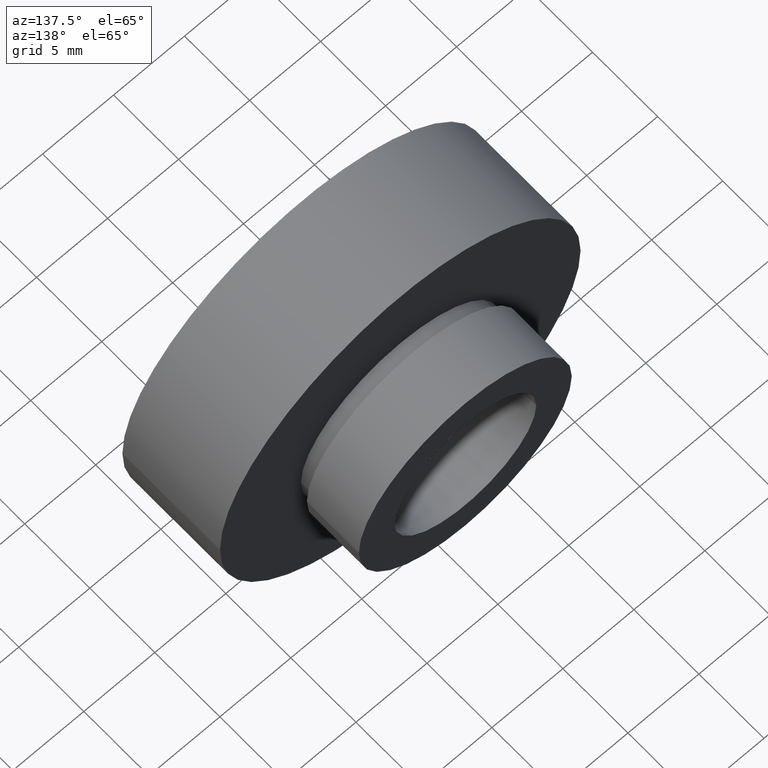
[diagram: clean part render]
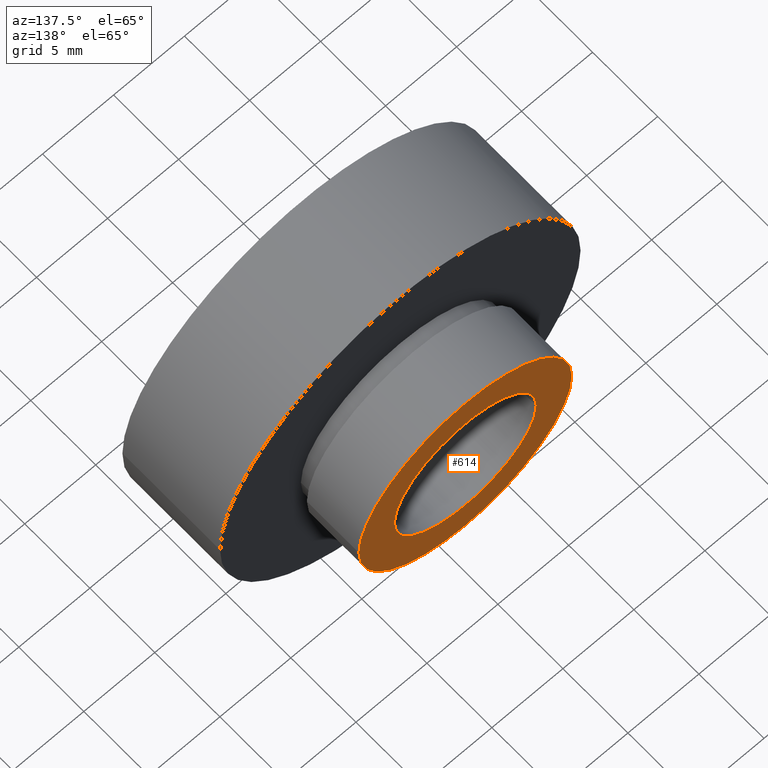
[diagram: same view with one face highlighted and labeled with its STEP entity id]
A machine part, auxiliary view. The second image highlights one B-rep face of the part: STEP entity #614.
In plain terms, the highlighted planar face has unit normal (0, -1, 0).
Its self-contained STEP definition (entity closure, byte-faithful):
#25 = PLANE ( 'NONE',  #171 ) ;
#27 = ORIENTED_EDGE ( 'NONE', *, *, #395, .T. ) ;
#40 = ORIENTED_EDGE ( 'NONE', *, *, #592, .F. ) ;
#53 = CIRCLE ( 'NONE', #141, 7.500000000000000000 ) ;
#56 = CARTESIAN_POINT ( 'NONE',  ( -5.000000000000000000, 12.50000000000000000, 0.0000000000000000000 ) ) ;
#58 = DIRECTION ( 'NONE',  ( -1.000000000000000000, -2.312964634635743000E-016, 0.0000000000000000000 ) ) ;
#82 = CARTESIAN_POINT ( 'NONE',  ( 7.500000000000000900, 12.49999999999999800, 9.184850993605147900E-016 ) ) ;
#85 = ORIENTED_EDGE ( 'NONE', *, *, #605, .T. ) ;
#91 = EDGE_LOOP ( 'NONE', ( #135, #40 ) ) ;
#112 = CARTESIAN_POINT ( 'NONE',  ( 5.371323195044471300E-016, 12.50000000000000000, 0.0000000000000000000 ) ) ;
#135 = ORIENTED_EDGE ( 'NONE', *, *, #612, .F. ) ;
#140 = DIRECTION ( 'NONE',  ( -1.000000000000000000, -2.312964634635743000E-016, 0.0000000000000000000 ) ) ;
#141 = AXIS2_PLACEMENT_3D ( 'NONE', #288, #259, #140 ) ;
#147 = DIRECTION ( 'NONE',  ( -1.224646799147351000E-016, 1.000000000000000000, -0.0000000000000000000 ) ) ;
#171 = AXIS2_PLACEMENT_3D ( 'NONE', #219, #268, #493 ) ;
#186 = VERTEX_POINT ( 'NONE', #56 ) ;
#200 = VERTEX_POINT ( 'NONE', #486 ) ;
#219 = CARTESIAN_POINT ( 'NONE',  ( 5.000000000000001800, 12.50000000000000000, 0.0000000000000000000 ) ) ;
#237 = FACE_OUTER_BOUND ( 'NONE', #386, .T. ) ;
#244 = AXIS2_PLACEMENT_3D ( 'NONE', #112, #147, #277 ) ;
#259 = DIRECTION ( 'NONE',  ( -1.224646799147351000E-016, 1.000000000000000000, -0.0000000000000000000 ) ) ;
#265 = AXIS2_PLACEMENT_3D ( 'NONE', #438, #620, #58 ) ;
#266 = VERTEX_POINT ( 'NONE', #82 ) ;
#268 = DIRECTION ( 'NONE',  ( 1.224646799147351000E-016, -1.000000000000000000, 0.0000000000000000000 ) ) ;
#277 = DIRECTION ( 'NONE',  ( -1.000000000000000000, 0.0000000000000000000, 0.0000000000000000000 ) ) ;
#288 = CARTESIAN_POINT ( 'NONE',  ( 5.371323195044473300E-016, 12.49999999999999600, 0.0000000000000000000 ) ) ;
#293 = CARTESIAN_POINT ( 'NONE',  ( 5.371323195044471300E-016, 12.50000000000000000, 0.0000000000000000000 ) ) ;
#353 = DIRECTION ( 'NONE',  ( -1.224646799147351000E-016, 1.000000000000000000, -0.0000000000000000000 ) ) ;
#365 = DIRECTION ( 'NONE',  ( -1.000000000000000000, 0.0000000000000000000, 0.0000000000000000000 ) ) ;
#371 = AXIS2_PLACEMENT_3D ( 'NONE', #293, #353, #365 ) ;
#386 = EDGE_LOOP ( 'NONE', ( #27, #85 ) ) ;
#394 = VERTEX_POINT ( 'NONE', #514 ) ;
#395 = EDGE_CURVE ( 'NONE', #394, #266, #53, .T. ) ;
#429 = CIRCLE ( 'NONE', #371, 5.000000000000000900 ) ;
#438 = CARTESIAN_POINT ( 'NONE',  ( 5.371323195044473300E-016, 12.49999999999999600, 0.0000000000000000000 ) ) ;
#486 = CARTESIAN_POINT ( 'NONE',  ( 5.000000000000001800, 12.50000000000000000, 6.123233995736767300E-016 ) ) ;
#493 = DIRECTION ( 'NONE',  ( 1.000000000000000000, 1.224646799147351000E-016, 0.0000000000000000000 ) ) ;
#514 = CARTESIAN_POINT ( 'NONE',  ( -7.499999999999999100, 12.49999999999999500, 0.0000000000000000000 ) ) ;
#575 = FACE_BOUND ( 'NONE', #91, .T. ) ;
#587 = CIRCLE ( 'NONE', #265, 7.500000000000000000 ) ;
#589 = CIRCLE ( 'NONE', #244, 5.000000000000000900 ) ;
#592 = EDGE_CURVE ( 'NONE', #200, #186, #429, .T. ) ;
#605 = EDGE_CURVE ( 'NONE', #266, #394, #587, .T. ) ;
#612 = EDGE_CURVE ( 'NONE', #186, #200, #589, .T. ) ;
#614 = ADVANCED_FACE ( 'NONE', ( #575, #237 ), #25, .F. ) ;
#620 = DIRECTION ( 'NONE',  ( -1.224646799147351000E-016, 1.000000000000000000, -0.0000000000000000000 ) ) ;